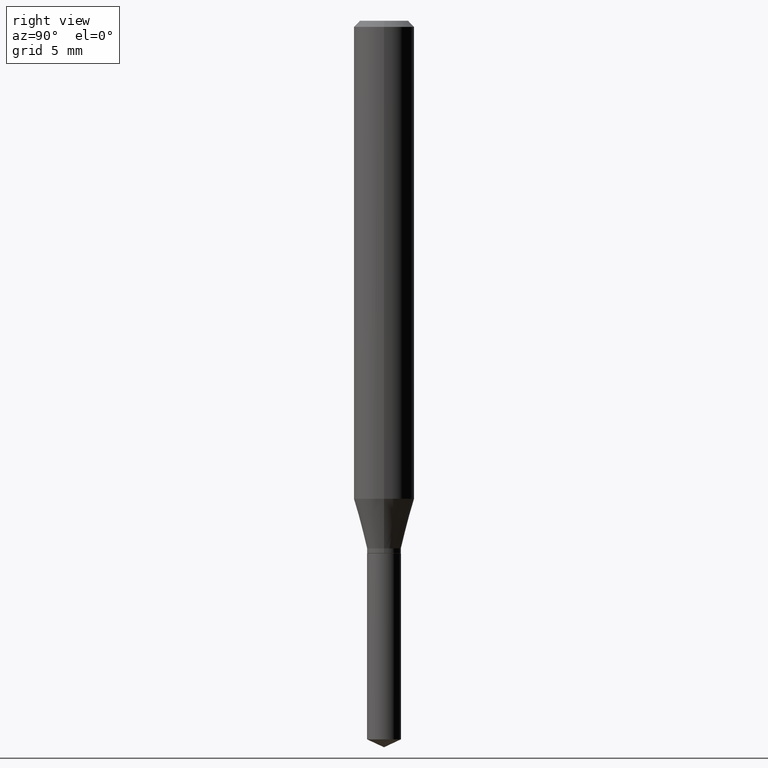
[diagram: clean part render]
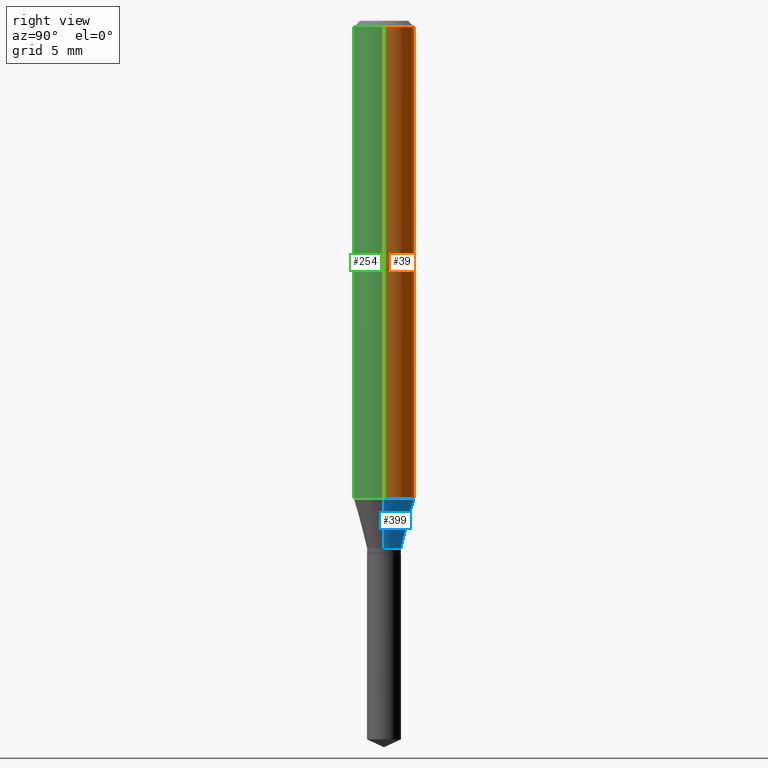
[diagram: same view with three faces highlighted in distinct colors, each labeled with its STEP entity id]
A machine part, right view with three faces highlighted in distinct colors.
Their STEP definitions:

[orange] entity #39 — the highlighted cylindrical surface (edge-blend (fillet) strip) has radius 1.5875 mm, axis along (-0, 0, 1).
#14 = EDGE_CURVE ( 'NONE', #472, #108, #423, .T. ) ;
#19 = LINE ( 'NONE', #247, #62 ) ;
#29 = VERTEX_POINT ( 'NONE', #414 ) ;
#32 = AXIS2_PLACEMENT_3D ( 'NONE', #116, #457, #342 ) ;
#39 = ADVANCED_FACE ( 'NONE', ( #259 ), #77, .T. ) ;
#49 = CARTESIAN_POINT ( 'NONE',  ( -0.06250000000000012490, -3.001544100687909891E-15, -0.9868686027918559533 ) ) ;
#62 = VECTOR ( 'NONE', #169, 39.37007874015748143 ) ;
#63 = EDGE_CURVE ( 'NONE', #29, #304, #308, .T. ) ;
#65 = ORIENTED_EDGE ( 'NONE', *, *, #271, .F. ) ;
#70 = ORIENTED_EDGE ( 'NONE', *, *, #63, .F. ) ;
#77 = CYLINDRICAL_SURFACE ( 'NONE', #217, 0.06250000000000005551 ) ;
#108 = VERTEX_POINT ( 'NONE', #49 ) ;
#116 = CARTESIAN_POINT ( 'NONE',  ( 2.413356383930993538E-29, -3.445633310537973691E-15, -0.9868686027918559533 ) ) ;
#142 = DIRECTION ( 'NONE',  ( -2.445468806185136877E-29, 3.491481338843145188E-15, 1.000000000000000000 ) ) ;
#150 = DIRECTION ( 'NONE',  ( -2.445468806185136597E-29, 3.491481338843145583E-15, 1.000000000000000000 ) ) ;
#169 = DIRECTION ( 'NONE',  ( -2.445468806185136877E-29, 3.491481338843145188E-15, 1.000000000000000000 ) ) ;
#217 = AXIS2_PLACEMENT_3D ( 'NONE', #419, #150, #306 ) ;
#242 = VECTOR ( 'NONE', #142, 39.37007874015748143 ) ;
#247 = CARTESIAN_POINT ( 'NONE',  ( -0.06250000000000005551, 4.440892098500630106E-16, -3.074334431409318916E-30 ) ) ;
#252 = CARTESIAN_POINT ( 'NONE',  ( 0.06250000000000012490, -3.882068477893365755E-15, -0.9868686027918559533 ) ) ;
#259 = FACE_OUTER_BOUND ( 'NONE', #447, .T. ) ;
#271 = EDGE_CURVE ( 'NONE', #472, #29, #480, .T. ) ;
#272 = EDGE_CURVE ( 'NONE', #108, #304, #19, .T. ) ;
#279 = AXIS2_PLACEMENT_3D ( 'NONE', #409, #302, #373 ) ;
#302 = DIRECTION ( 'NONE',  ( -2.445468806185136597E-29, 3.491481338843145583E-15, 1.000000000000000000 ) ) ;
#304 = VERTEX_POINT ( 'NONE', #360 ) ;
#306 = DIRECTION ( 'NONE',  ( 1.000000000000000000, -6.982962677686267499E-15, 4.876176775795936353E-29 ) ) ;
#308 = CIRCLE ( 'NONE', #279, 0.06250000000000000000 ) ;
#342 = DIRECTION ( 'NONE',  ( 1.000000000000000000, -6.982962677686264344E-15, 0.000000000000000000 ) ) ;
#360 = CARTESIAN_POINT ( 'NONE',  ( -0.06250000000000000000, -1.300549203786692629E-15, -0.01250000000000008223 ) ) ;
#373 = DIRECTION ( 'NONE',  ( 1.000000000000000000, -6.982962677686266711E-15, 0.000000000000000000 ) ) ;
#409 = CARTESIAN_POINT ( 'NONE',  ( 3.056836007731440977E-31, -4.364351673553961068E-17, -0.01250000000000008223 ) ) ;
#414 = CARTESIAN_POINT ( 'NONE',  ( 0.06250000000000000000, -4.800786840909312308E-16, -0.01250000000000008223 ) ) ;
#416 = ORIENTED_EDGE ( 'NONE', *, *, #272, .T. ) ;
#419 = CARTESIAN_POINT ( 'NONE',  ( 0.000000000000000000, 0.000000000000000000, 0.000000000000000000 ) ) ;
#423 = CIRCLE ( 'NONE', #32, 0.06250000000000012490 ) ;
#440 = CARTESIAN_POINT ( 'NONE',  ( 0.06250000000000005551, -4.364351673553921131E-16, 3.047610484872463023E-30 ) ) ;
#447 = EDGE_LOOP ( 'NONE', ( #458, #416, #70, #65 ) ) ;
#457 = DIRECTION ( 'NONE',  ( -2.445468806185136597E-29, 3.491481338843145583E-15, 1.000000000000000000 ) ) ;
#458 = ORIENTED_EDGE ( 'NONE', *, *, #14, .T. ) ;
#472 = VERTEX_POINT ( 'NONE', #252 ) ;
#480 = LINE ( 'NONE', #440, #242 ) ;

[blue] entity #399 — the highlighted conical surface has half-angle 15 deg.
#4 = EDGE_LOOP ( 'NONE', ( #256, #296, #30, #243 ) ) ;
#14 = EDGE_CURVE ( 'NONE', #472, #108, #423, .T. ) ;
#27 = EDGE_CURVE ( 'NONE', #82, #350, #43, .T. ) ;
#30 = ORIENTED_EDGE ( 'NONE', *, *, #14, .F. ) ;
#32 = AXIS2_PLACEMENT_3D ( 'NONE', #116, #457, #342 ) ;
#43 = CIRCLE ( 'NONE', #143, 0.03500000000000000333 ) ;
#49 = CARTESIAN_POINT ( 'NONE',  ( -0.06250000000000012490, -3.001544100687909891E-15, -0.9868686027918559533 ) ) ;
#72 = DIRECTION ( 'NONE',  ( 1.000000000000000000, -6.982962677686262766E-15, 0.000000000000000000 ) ) ;
#76 = LINE ( 'NONE', #222, #379 ) ;
#82 = VERTEX_POINT ( 'NONE', #262 ) ;
#108 = VERTEX_POINT ( 'NONE', #49 ) ;
#113 = CARTESIAN_POINT ( 'NONE',  ( 2.664338264338706582E-29, -3.803968918669607738E-15, -1.089500000000000135 ) ) ;
#116 = CARTESIAN_POINT ( 'NONE',  ( 2.413356383930993538E-29, -3.445633310537973691E-15, -0.9868686027918559533 ) ) ;
#120 = DIRECTION ( 'NONE',  ( 1.000000000000000000, -6.982962677686262766E-15, 0.000000000000000000 ) ) ;
#128 = VECTOR ( 'NONE', #451, 39.37007874015747433 ) ;
#143 = AXIS2_PLACEMENT_3D ( 'NONE', #113, #234, #120 ) ;
#172 = CONICAL_SURFACE ( 'NONE', #392, 0.03500000000000000333, 0.2617993877991500740 ) ;
#188 = DIRECTION ( 'NONE',  ( 0.2588190451025213501, 1.565188264969621968E-15, 0.9659258262890682012 ) ) ;
#222 = CARTESIAN_POINT ( 'NONE',  ( 0.03500000000000000333, -4.048372612388626915E-15, -1.089500000000000135 ) ) ;
#234 = DIRECTION ( 'NONE',  ( -2.445468806185136597E-29, 3.491481338843145583E-15, 1.000000000000000000 ) ) ;
#243 = ORIENTED_EDGE ( 'NONE', *, *, #428, .F. ) ;
#249 = CARTESIAN_POINT ( 'NONE',  ( -0.03500000000000000333, -3.572736367847787487E-15, -1.089500000000000135 ) ) ;
#252 = CARTESIAN_POINT ( 'NONE',  ( 0.06250000000000012490, -3.882068477893365755E-15, -0.9868686027918559533 ) ) ;
#256 = ORIENTED_EDGE ( 'NONE', *, *, #27, .T. ) ;
#262 = CARTESIAN_POINT ( 'NONE',  ( 0.03500000000000000333, -4.048372612388626915E-15, -1.089500000000000135 ) ) ;
#296 = ORIENTED_EDGE ( 'NONE', *, *, #354, .T. ) ;
#314 = LINE ( 'NONE', #470, #128 ) ;
#329 = CARTESIAN_POINT ( 'NONE',  ( 2.664338264338706582E-29, -3.803968918669607738E-15, -1.089500000000000135 ) ) ;
#333 = FACE_OUTER_BOUND ( 'NONE', #4, .T. ) ;
#342 = DIRECTION ( 'NONE',  ( 1.000000000000000000, -6.982962677686264344E-15, 0.000000000000000000 ) ) ;
#350 = VERTEX_POINT ( 'NONE', #249 ) ;
#354 = EDGE_CURVE ( 'NONE', #350, #108, #314, .T. ) ;
#366 = DIRECTION ( 'NONE',  ( -2.445468806185136597E-29, 3.491481338843145583E-15, 1.000000000000000000 ) ) ;
#379 = VECTOR ( 'NONE', #188, 39.37007874015747433 ) ;
#392 = AXIS2_PLACEMENT_3D ( 'NONE', #329, #366, #72 ) ;
#399 = ADVANCED_FACE ( 'NONE', ( #333 ), #172, .T. ) ;
#423 = CIRCLE ( 'NONE', #32, 0.06250000000000012490 ) ;
#428 = EDGE_CURVE ( 'NONE', #82, #472, #76, .T. ) ;
#451 = DIRECTION ( 'NONE',  ( -0.2588190451025213501, 5.211531920934551042E-15, 0.9659258262890682012 ) ) ;
#457 = DIRECTION ( 'NONE',  ( -2.445468806185136597E-29, 3.491481338843145583E-15, 1.000000000000000000 ) ) ;
#470 = CARTESIAN_POINT ( 'NONE',  ( -0.03500000000000000333, -3.555278961153572452E-15, -1.089500000000000135 ) ) ;
#472 = VERTEX_POINT ( 'NONE', #252 ) ;

[green] entity #254 — the highlighted cylindrical surface (edge-blend (fillet) strip) has radius 1.5875 mm, axis along (-0, 0, 1).
#19 = LINE ( 'NONE', #247, #62 ) ;
#25 = DIRECTION ( 'NONE',  ( -2.445468806185136597E-29, 3.491481338843145583E-15, 1.000000000000000000 ) ) ;
#29 = VERTEX_POINT ( 'NONE', #414 ) ;
#49 = CARTESIAN_POINT ( 'NONE',  ( -0.06250000000000012490, -3.001544100687909891E-15, -0.9868686027918559533 ) ) ;
#56 = EDGE_LOOP ( 'NONE', ( #146, #282, #111, #78 ) ) ;
#58 = AXIS2_PLACEMENT_3D ( 'NONE', #433, #442, #362 ) ;
#62 = VECTOR ( 'NONE', #169, 39.37007874015748143 ) ;
#78 = ORIENTED_EDGE ( 'NONE', *, *, #214, .F. ) ;
#104 = CARTESIAN_POINT ( 'NONE',  ( 3.056836007731440977E-31, -4.364351673553961068E-17, -0.01250000000000008223 ) ) ;
#108 = VERTEX_POINT ( 'NONE', #49 ) ;
#111 = ORIENTED_EDGE ( 'NONE', *, *, #271, .T. ) ;
#142 = DIRECTION ( 'NONE',  ( -2.445468806185136877E-29, 3.491481338843145188E-15, 1.000000000000000000 ) ) ;
#144 = DIRECTION ( 'NONE',  ( 1.000000000000000000, -6.982962677686266711E-15, 0.000000000000000000 ) ) ;
#146 = ORIENTED_EDGE ( 'NONE', *, *, #272, .F. ) ;
#169 = DIRECTION ( 'NONE',  ( -2.445468806185136877E-29, 3.491481338843145188E-15, 1.000000000000000000 ) ) ;
#190 = EDGE_CURVE ( 'NONE', #108, #472, #260, .T. ) ;
#192 = AXIS2_PLACEMENT_3D ( 'NONE', #361, #25, #482 ) ;
#204 = CYLINDRICAL_SURFACE ( 'NONE', #58, 0.06250000000000005551 ) ;
#214 = EDGE_CURVE ( 'NONE', #304, #29, #456, .T. ) ;
#235 = AXIS2_PLACEMENT_3D ( 'NONE', #104, #484, #144 ) ;
#242 = VECTOR ( 'NONE', #142, 39.37007874015748143 ) ;
#247 = CARTESIAN_POINT ( 'NONE',  ( -0.06250000000000005551, 4.440892098500630106E-16, -3.074334431409318916E-30 ) ) ;
#252 = CARTESIAN_POINT ( 'NONE',  ( 0.06250000000000012490, -3.882068477893365755E-15, -0.9868686027918559533 ) ) ;
#254 = ADVANCED_FACE ( 'NONE', ( #355 ), #204, .T. ) ;
#260 = CIRCLE ( 'NONE', #192, 0.06250000000000012490 ) ;
#271 = EDGE_CURVE ( 'NONE', #472, #29, #480, .T. ) ;
#272 = EDGE_CURVE ( 'NONE', #108, #304, #19, .T. ) ;
#282 = ORIENTED_EDGE ( 'NONE', *, *, #190, .T. ) ;
#304 = VERTEX_POINT ( 'NONE', #360 ) ;
#355 = FACE_OUTER_BOUND ( 'NONE', #56, .T. ) ;
#360 = CARTESIAN_POINT ( 'NONE',  ( -0.06250000000000000000, -1.300549203786692629E-15, -0.01250000000000008223 ) ) ;
#361 = CARTESIAN_POINT ( 'NONE',  ( 2.413356383930993538E-29, -3.445633310537973691E-15, -0.9868686027918559533 ) ) ;
#362 = DIRECTION ( 'NONE',  ( 1.000000000000000000, -6.982962677686267499E-15, 4.876176775795936353E-29 ) ) ;
#414 = CARTESIAN_POINT ( 'NONE',  ( 0.06250000000000000000, -4.800786840909312308E-16, -0.01250000000000008223 ) ) ;
#433 = CARTESIAN_POINT ( 'NONE',  ( 0.000000000000000000, 0.000000000000000000, 0.000000000000000000 ) ) ;
#440 = CARTESIAN_POINT ( 'NONE',  ( 0.06250000000000005551, -4.364351673553921131E-16, 3.047610484872463023E-30 ) ) ;
#442 = DIRECTION ( 'NONE',  ( -2.445468806185136597E-29, 3.491481338843145583E-15, 1.000000000000000000 ) ) ;
#456 = CIRCLE ( 'NONE', #235, 0.06250000000000000000 ) ;
#472 = VERTEX_POINT ( 'NONE', #252 ) ;
#480 = LINE ( 'NONE', #440, #242 ) ;
#482 = DIRECTION ( 'NONE',  ( 1.000000000000000000, -6.982962677686264344E-15, 0.000000000000000000 ) ) ;
#484 = DIRECTION ( 'NONE',  ( -2.445468806185136597E-29, 3.491481338843145583E-15, 1.000000000000000000 ) ) ;